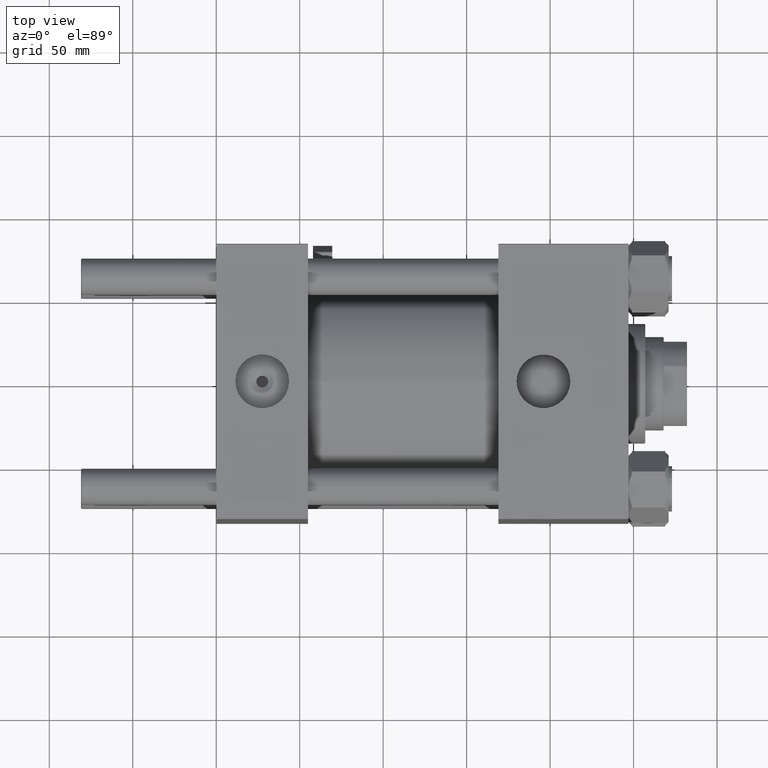
[diagram: clean part render]
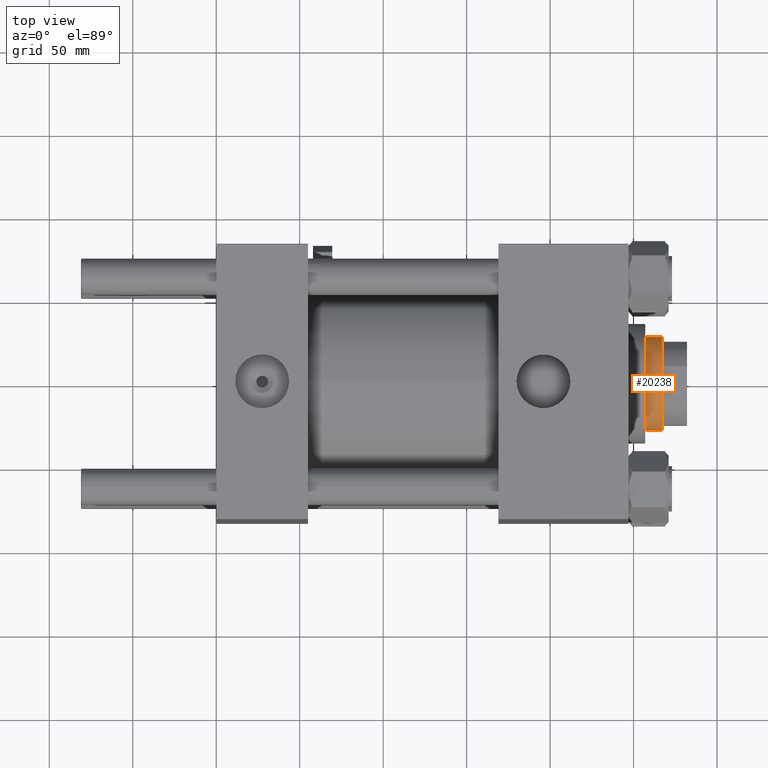
[diagram: same view with one face highlighted and labeled with its STEP entity id]
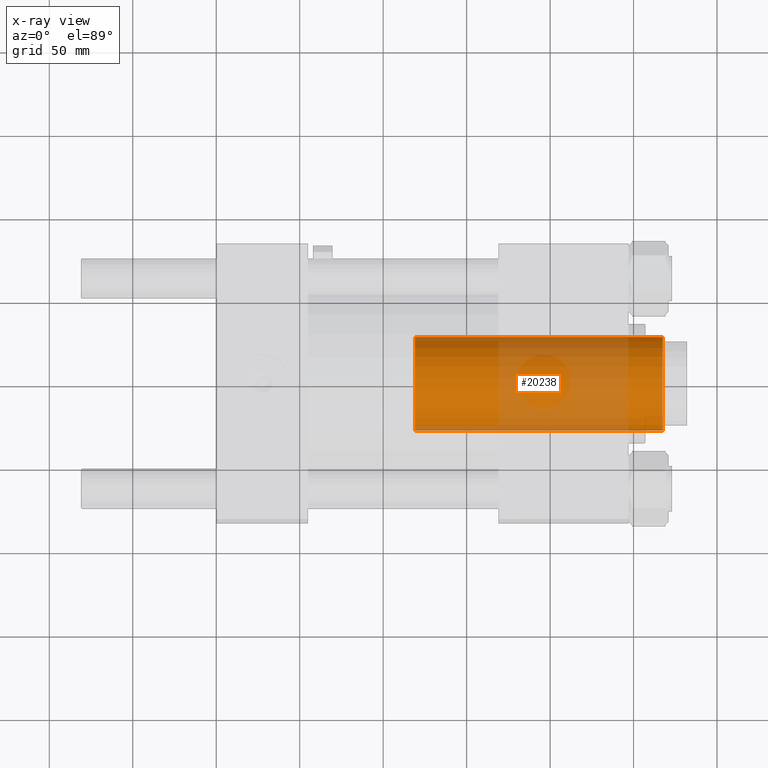
[diagram: x-ray of the same camera — body ghosted, the highlighted face saturated]
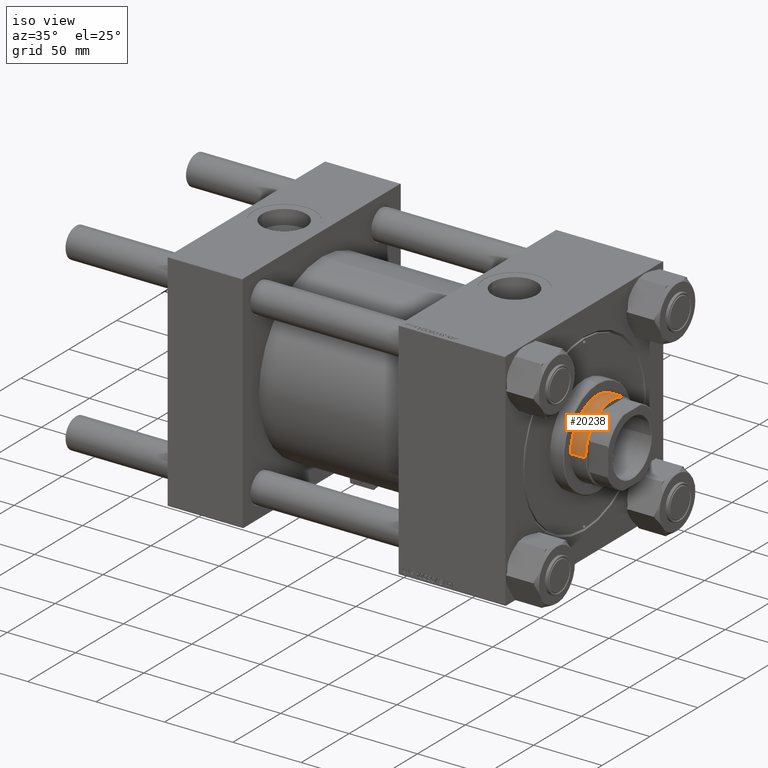
[diagram: same view with one face highlighted and labeled with its STEP entity id]
A machine part, top view. The second image highlights one B-rep face of the part: STEP entity #20238.
The next image is the same camera in x-ray: the body ghosted, the highlighted face saturated — about 46% of this face is hidden behind the body in this view.
A second angle (iso view) of the same face is appended — the face is thin or edge-on in the first view.
In plain terms, the highlighted cylindrical surface (partial cylindrical patch) has radius 28 mm, axis along (-1, 0, 0).
Its self-contained STEP definition (entity closure, byte-faithful):
#461 = DIRECTION ( 'NONE',  ( 0.000000000000000000, 0.000000000000000000, -1.000000000000000000 ) ) ;
#1954 = DIRECTION ( 'NONE',  ( 1.000000000000000000, 0.000000000000000000, 0.000000000000000000 ) ) ;
#2316 = AXIS2_PLACEMENT_3D ( 'NONE', #5429, #30947, #1954 ) ;
#3189 = CIRCLE ( 'NONE', #2316, 28.00000000000000000 ) ;
#3904 = FACE_OUTER_BOUND ( 'NONE', #20963, .T. ) ;
#5097 = VECTOR ( 'NONE', #45540, 1000.000000000000000 ) ;
#5429 = CARTESIAN_POINT ( 'NONE',  ( 0.000000000000000000, 0.000000000000000000, 64.00000000000000000 ) ) ;
#6865 = AXIS2_PLACEMENT_3D ( 'NONE', #36406, #16171, #32412 ) ;
#11170 = VECTOR ( 'NONE', #38636, 1000.000000000000000 ) ;
#15681 = CARTESIAN_POINT ( 'NONE',  ( -28.00000000000000000, 0.000000000000000000, 212.5000000000000000 ) ) ;
#15696 = ORIENTED_EDGE ( 'NONE', *, *, #21136, .T. ) ;
#15818 = VERTEX_POINT ( 'NONE', #41555 ) ;
#16171 = DIRECTION ( 'NONE',  ( -0.000000000000000000, -0.000000000000000000, -1.000000000000000000 ) ) ;
#16210 = CARTESIAN_POINT ( 'NONE',  ( 28.00000000000000000, 3.429011037612589276E-15, 212.5000000000000000 ) ) ;
#17018 = CIRCLE ( 'NONE', #37416, 28.00000000000000000 ) ;
#17299 = EDGE_CURVE ( 'NONE', #51827, #51845, #17018, .T. ) ;
#17720 = EDGE_CURVE ( 'NONE', #51827, #15818, #29312, .T. ) ;
#17750 = DIRECTION ( 'NONE',  ( 1.000000000000000000, 0.000000000000000000, 0.000000000000000000 ) ) ;
#20160 = CYLINDRICAL_SURFACE ( 'NONE', #6865, 28.00000000000000000 ) ;
#20238 = ADVANCED_FACE ( 'NONE', ( #3904 ), #20160, .T. ) ;
#20963 = EDGE_LOOP ( 'NONE', ( #40365, #42789, #15696, #51330 ) ) ;
#21136 = EDGE_CURVE ( 'NONE', #51845, #22873, #22416, .T. ) ;
#22416 = LINE ( 'NONE', #31453, #11170 ) ;
#22873 = VERTEX_POINT ( 'NONE', #35474 ) ;
#25215 = CARTESIAN_POINT ( 'NONE',  ( 0.000000000000000000, 0.000000000000000000, 212.5000000000000000 ) ) ;
#25322 = CARTESIAN_POINT ( 'NONE',  ( 28.00000000000000000, 3.429011037612589276E-15, 213.0000000000000000 ) ) ;
#29312 = LINE ( 'NONE', #25322, #5097 ) ;
#30947 = DIRECTION ( 'NONE',  ( 0.000000000000000000, 0.000000000000000000, 1.000000000000000000 ) ) ;
#31453 = CARTESIAN_POINT ( 'NONE',  ( -28.00000000000000000, 0.000000000000000000, 213.0000000000000000 ) ) ;
#32412 = DIRECTION ( 'NONE',  ( -1.000000000000000000, 0.000000000000000000, 0.000000000000000000 ) ) ;
#35474 = CARTESIAN_POINT ( 'NONE',  ( -28.00000000000000000, 0.000000000000000000, 64.00000000000000000 ) ) ;
#36406 = CARTESIAN_POINT ( 'NONE',  ( 0.000000000000000000, 0.000000000000000000, 213.0000000000000000 ) ) ;
#37416 = AXIS2_PLACEMENT_3D ( 'NONE', #25215, #461, #17750 ) ;
#37659 = EDGE_CURVE ( 'NONE', #22873, #15818, #3189, .T. ) ;
#38636 = DIRECTION ( 'NONE',  ( -0.000000000000000000, -0.000000000000000000, -1.000000000000000000 ) ) ;
#40365 = ORIENTED_EDGE ( 'NONE', *, *, #17720, .F. ) ;
#41555 = CARTESIAN_POINT ( 'NONE',  ( 28.00000000000000000, 3.429011037612589276E-15, 64.00000000000000000 ) ) ;
#42789 = ORIENTED_EDGE ( 'NONE', *, *, #17299, .T. ) ;
#45540 = DIRECTION ( 'NONE',  ( -0.000000000000000000, -0.000000000000000000, -1.000000000000000000 ) ) ;
#51330 = ORIENTED_EDGE ( 'NONE', *, *, #37659, .T. ) ;
#51827 = VERTEX_POINT ( 'NONE', #16210 ) ;
#51845 = VERTEX_POINT ( 'NONE', #15681 ) ;